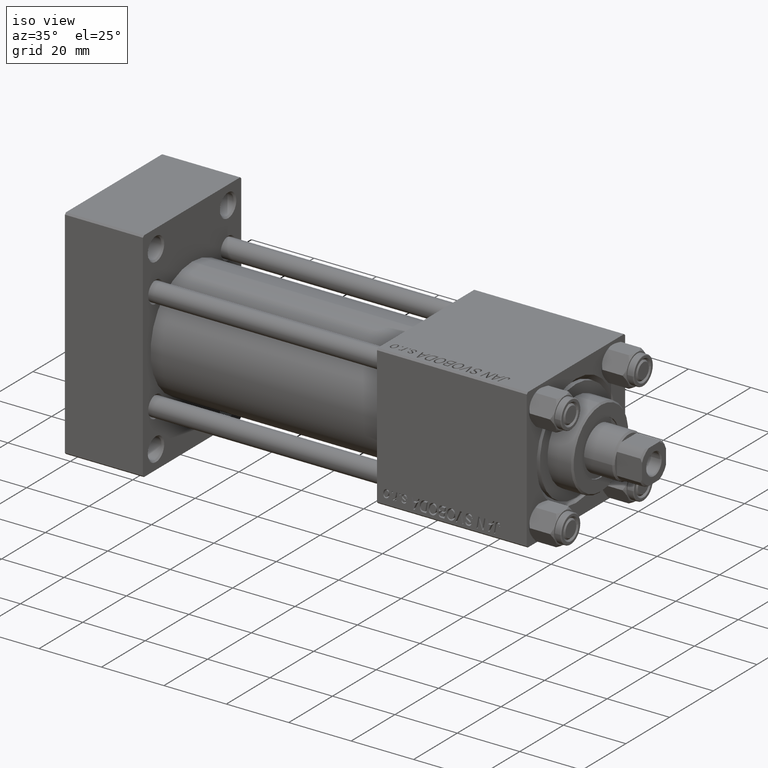
[diagram: clean part render]
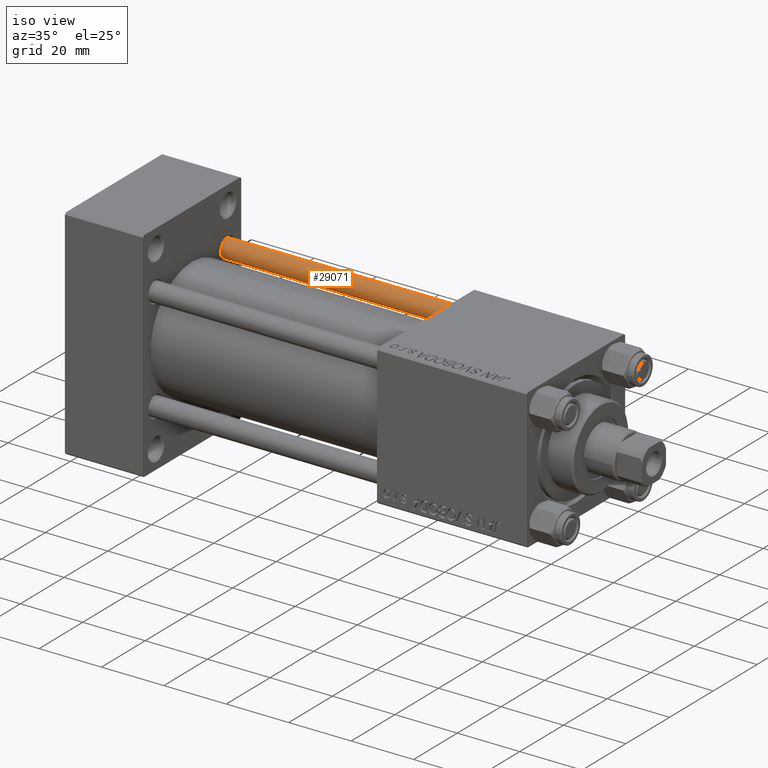
[diagram: same view with one face highlighted and labeled with its STEP entity id]
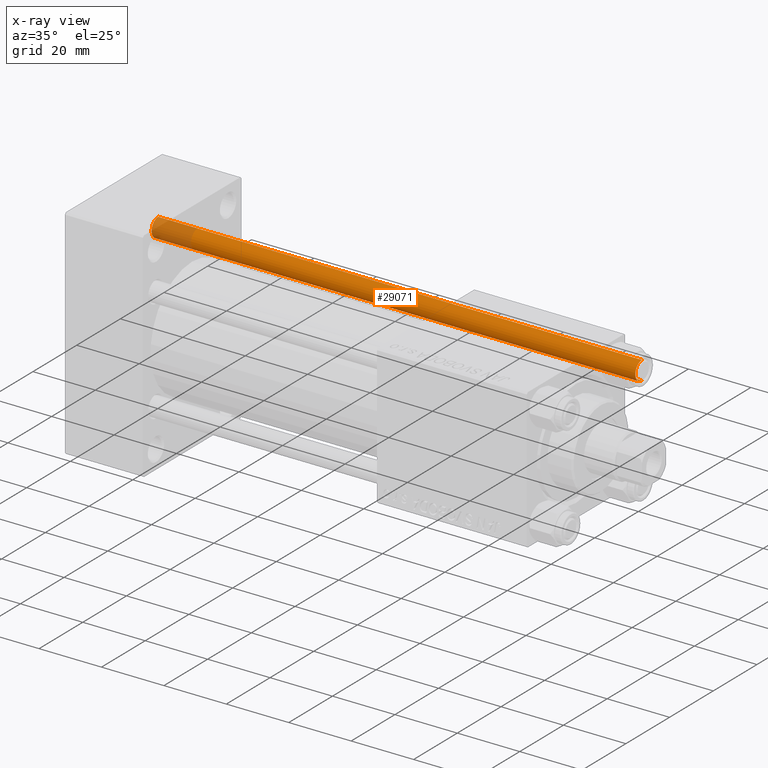
[diagram: x-ray of the same camera — body ghosted, the highlighted face saturated]
A machine part, iso view. The second image highlights one B-rep face of the part: STEP entity #29071.
The next image is the same camera in x-ray: the body ghosted, the highlighted face saturated — about 8% of this face is hidden behind the body in this view.
In plain terms, the highlighted cylindrical surface (edge-blend (fillet) strip) has radius 3 mm, axis along (1, 0, 0).
Its self-contained STEP definition (entity closure, byte-faithful):
#1092 = CIRCLE ( 'NONE', #14888, 3.000000000000000444 ) ;
#4161 = VECTOR ( 'NONE', #20669, 1000.000000000000000 ) ;
#5051 = ORIENTED_EDGE ( 'NONE', *, *, #13331, .F. ) ;
#6184 = CARTESIAN_POINT ( 'NONE',  ( 0.000000000000000000, 0.000000000000000000, 156.0000000000000000 ) ) ;
#8031 = DIRECTION ( 'NONE',  ( 0.000000000000000000, 0.000000000000000000, -1.000000000000000000 ) ) ;
#8394 = EDGE_CURVE ( 'NONE', #13853, #15189, #1092, .T. ) ;
#9171 = AXIS2_PLACEMENT_3D ( 'NONE', #43157, #8031, #46446 ) ;
#9248 = DIRECTION ( 'NONE',  ( -0.000000000000000000, -0.000000000000000000, 1.000000000000000000 ) ) ;
#13331 = EDGE_CURVE ( 'NONE', #17245, #15189, #24452, .T. ) ;
#13853 = VERTEX_POINT ( 'NONE', #28382 ) ;
#14102 = CARTESIAN_POINT ( 'NONE',  ( 3.000000000000000444, 3.673940397442060361E-16, 156.0000000000000000 ) ) ;
#14434 = VERTEX_POINT ( 'NONE', #29312 ) ;
#14888 = AXIS2_PLACEMENT_3D ( 'NONE', #27455, #9248, #47658 ) ;
#15189 = VERTEX_POINT ( 'NONE', #36664 ) ;
#17245 = VERTEX_POINT ( 'NONE', #36739 ) ;
#18141 = LINE ( 'NONE', #14102, #31473 ) ;
#19716 = ORIENTED_EDGE ( 'NONE', *, *, #22779, .T. ) ;
#20669 = DIRECTION ( 'NONE',  ( -0.000000000000000000, -0.000000000000000000, -1.000000000000000000 ) ) ;
#22100 = FACE_OUTER_BOUND ( 'NONE', #46085, .T. ) ;
#22779 = EDGE_CURVE ( 'NONE', #17245, #14434, #34161, .T. ) ;
#24452 = LINE ( 'NONE', #36083, #4161 ) ;
#27131 = AXIS2_PLACEMENT_3D ( 'NONE', #6184, #40569, #37025 ) ;
#27455 = CARTESIAN_POINT ( 'NONE',  ( 0.000000000000000000, 0.000000000000000000, 0.5000000000000004441 ) ) ;
#28382 = CARTESIAN_POINT ( 'NONE',  ( 3.000000000000000444, 3.673940397442060361E-16, 0.5000000000000004441 ) ) ;
#29071 = ADVANCED_FACE ( 'NONE', ( #22100 ), #40814, .T. ) ;
#29312 = CARTESIAN_POINT ( 'NONE',  ( 3.000000000000000444, 3.673940397442060361E-16, 155.5000000000000284 ) ) ;
#31473 = VECTOR ( 'NONE', #48965, 1000.000000000000000 ) ;
#34161 = CIRCLE ( 'NONE', #9171, 3.000000000000000444 ) ;
#35395 = ORIENTED_EDGE ( 'NONE', *, *, #49177, .T. ) ;
#36083 = CARTESIAN_POINT ( 'NONE',  ( -3.000000000000000444, 0.000000000000000000, 156.0000000000000000 ) ) ;
#36664 = CARTESIAN_POINT ( 'NONE',  ( -3.000000000000000444, 0.000000000000000000, 0.5000000000000004441 ) ) ;
#36739 = CARTESIAN_POINT ( 'NONE',  ( -3.000000000000000444, 0.000000000000000000, 155.5000000000000284 ) ) ;
#37025 = DIRECTION ( 'NONE',  ( -1.000000000000000000, 0.000000000000000000, 0.000000000000000000 ) ) ;
#40569 = DIRECTION ( 'NONE',  ( -0.000000000000000000, -0.000000000000000000, -1.000000000000000000 ) ) ;
#40814 = CYLINDRICAL_SURFACE ( 'NONE', #27131, 3.000000000000000444 ) ;
#43086 = ORIENTED_EDGE ( 'NONE', *, *, #8394, .T. ) ;
#43157 = CARTESIAN_POINT ( 'NONE',  ( 0.000000000000000000, 0.000000000000000000, 155.5000000000000284 ) ) ;
#46085 = EDGE_LOOP ( 'NONE', ( #19716, #35395, #43086, #5051 ) ) ;
#46446 = DIRECTION ( 'NONE',  ( 1.000000000000000000, 0.000000000000000000, 0.000000000000000000 ) ) ;
#47658 = DIRECTION ( 'NONE',  ( 1.000000000000000000, 0.000000000000000000, 0.000000000000000000 ) ) ;
#48965 = DIRECTION ( 'NONE',  ( -0.000000000000000000, -0.000000000000000000, -1.000000000000000000 ) ) ;
#49177 = EDGE_CURVE ( 'NONE', #14434, #13853, #18141, .T. ) ;